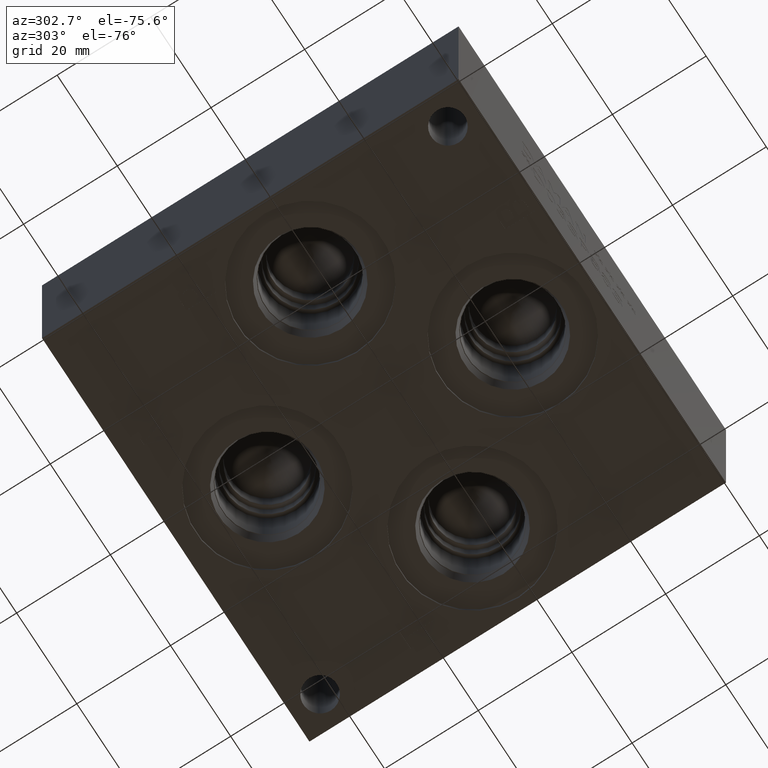
[diagram: clean part render]
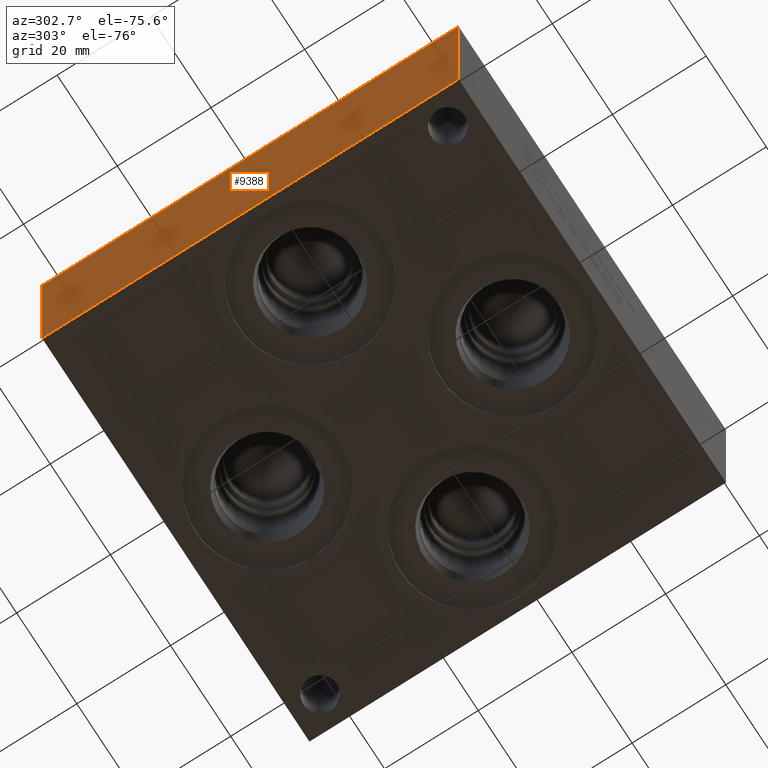
[diagram: same view with one face highlighted and labeled with its STEP entity id]
A machine part, auxiliary view. The second image highlights one B-rep face of the part: STEP entity #9388.
In plain terms, the highlighted planar face has unit normal (-1, 0, 0).
Its self-contained STEP definition (entity closure, byte-faithful):
#549=PLANE('',#9876);
#1029=FACE_OUTER_BOUND('',#1565,.T.);
#1565=EDGE_LOOP('',(#8343,#8344,#8345,#8346));
#1615=LINE('',#11915,#2491);
#2013=LINE('',#14887,#2889);
#2453=LINE('',#16201,#3329);
#2454=LINE('',#16202,#3330);
#2491=VECTOR('',#9937,10.);
#2889=VECTOR('',#10565,10.);
#3329=VECTOR('',#11693,10.);
#3330=VECTOR('',#11694,10.);
#3650=VERTEX_POINT('',#11911);
#3652=VERTEX_POINT('',#11914);
#4095=VERTEX_POINT('',#14885);
#4497=VERTEX_POINT('',#16200);
#4548=EDGE_CURVE('',#3652,#3650,#1615,.T.);
#5208=EDGE_CURVE('',#3650,#4095,#2013,.T.);
#5790=EDGE_CURVE('',#4497,#4095,#2453,.T.);
#5791=EDGE_CURVE('',#3652,#4497,#2454,.T.);
#8343=ORIENTED_EDGE('',*,*,#4548,.T.);
#8344=ORIENTED_EDGE('',*,*,#5208,.T.);
#8345=ORIENTED_EDGE('',*,*,#5790,.F.);
#8346=ORIENTED_EDGE('',*,*,#5791,.F.);
#9388=ADVANCED_FACE('',(#1029),#549,.T.);
#9876=AXIS2_PLACEMENT_3D('',#16199,#11691,#11692);
#9937=DIRECTION('',(0.,-1.,0.));
#10565=DIRECTION('',(0.,0.,1.));
#11691=DIRECTION('center_axis',(-1.,0.,0.));
#11692=DIRECTION('ref_axis',(0.,-1.,0.));
#11693=DIRECTION('',(0.,-1.,0.));
#11694=DIRECTION('',(0.,0.,1.));
#11911=CARTESIAN_POINT('',(0.,0.,0.));
#11914=CARTESIAN_POINT('',(0.,88.9,0.));
#11915=CARTESIAN_POINT('',(0.,88.9,0.));
#14885=CARTESIAN_POINT('',(0.,0.,38.1));
#14887=CARTESIAN_POINT('',(0.,0.,0.));
#16199=CARTESIAN_POINT('Origin',(0.,88.9,0.));
#16200=CARTESIAN_POINT('',(0.,88.9,38.1));
#16201=CARTESIAN_POINT('',(0.,88.9,38.1));
#16202=CARTESIAN_POINT('',(0.,88.9,0.));